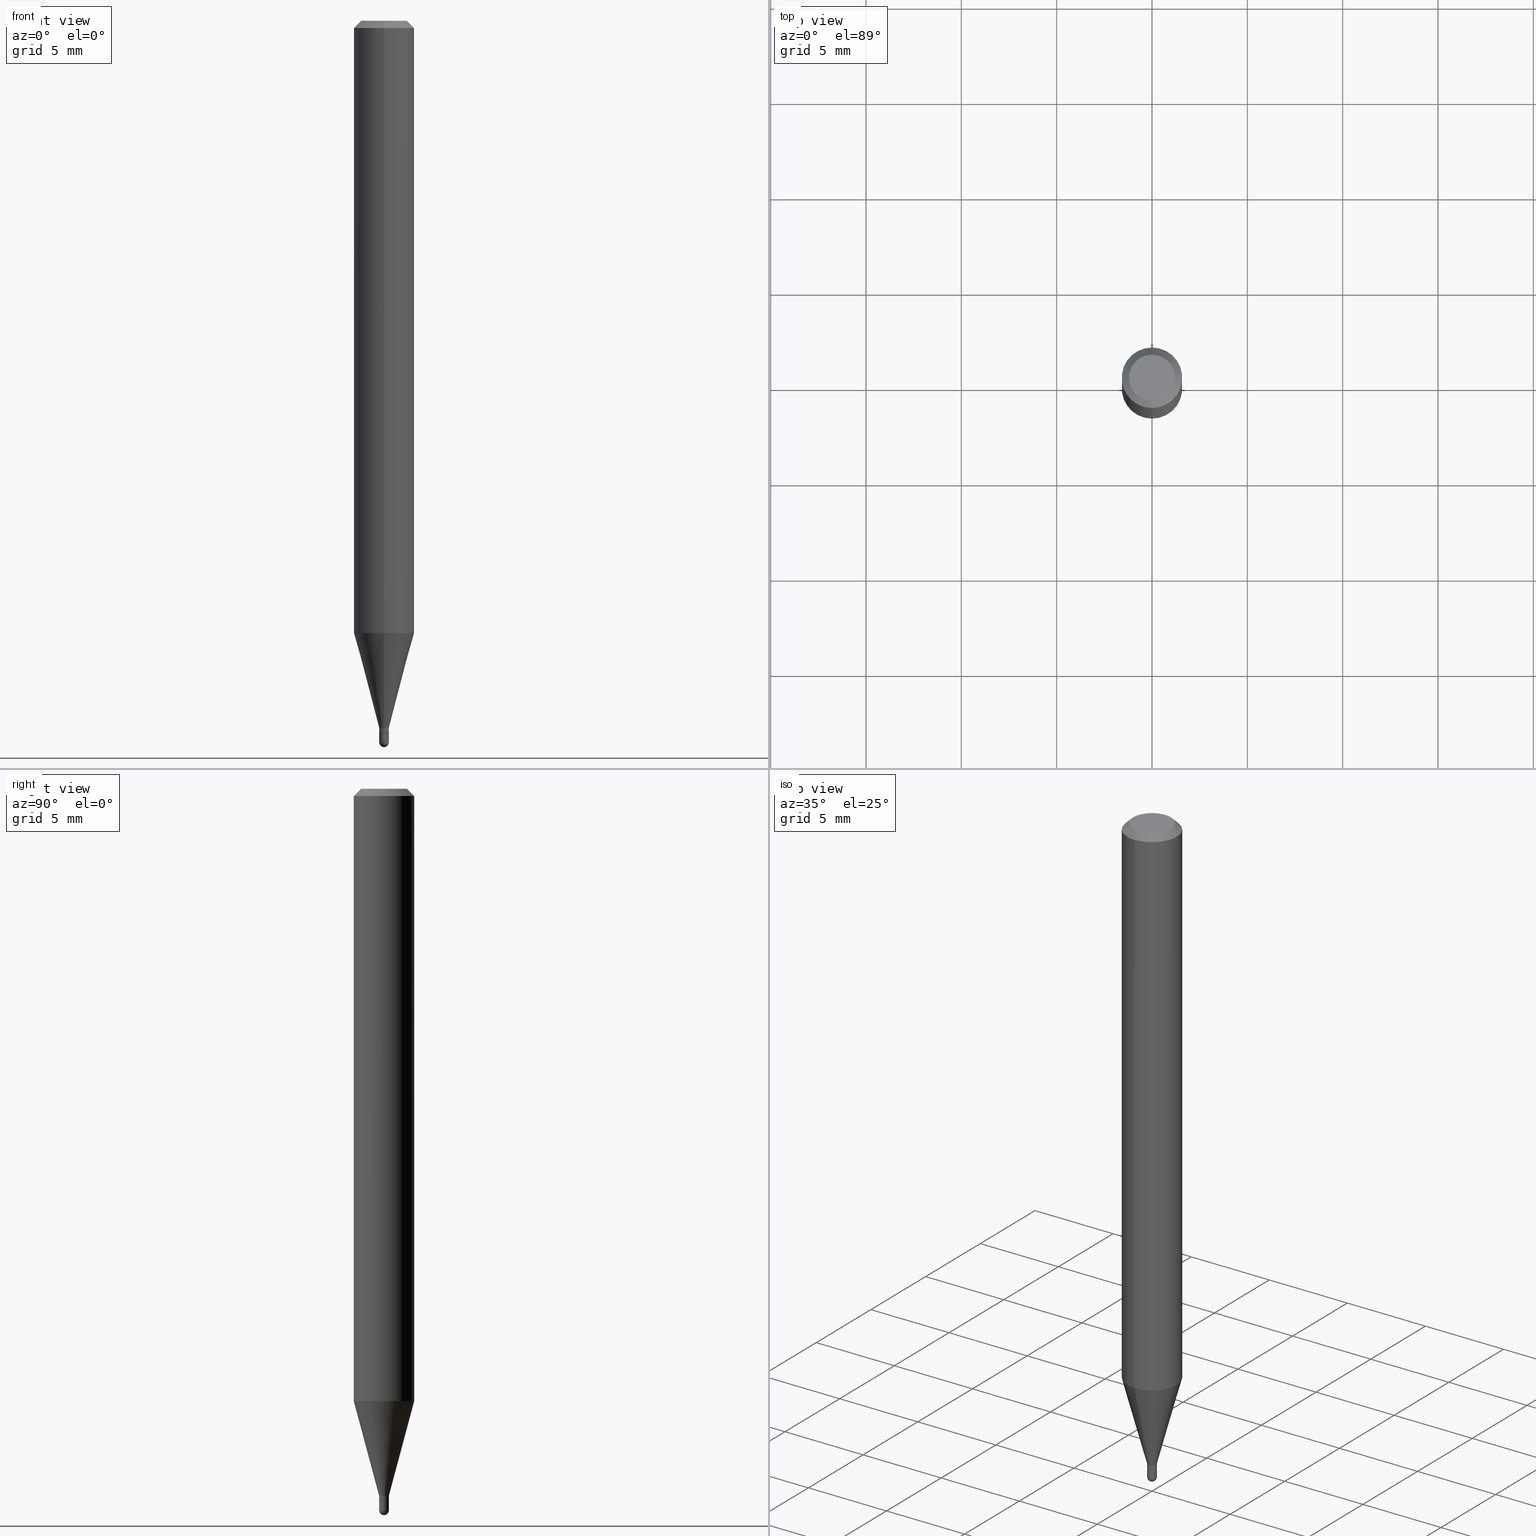
[diagram: canonical four-view strip — front | top / right | iso, engineering-drawing reading convention]
A machine part, canonical four-view strip (front | top / right | iso — engineering-drawing reading convention). The complete STEP part file that produces these views, byte-faithful:
ISO-10303-21;
HEADER;
FILE_DESCRIPTION (( 'STEP AP203' ),
    '1' );
FILE_NAME ('03081.STEP',
    '2024-03-08T18:07:33',
    ( '' ),
    ( '' ),
    'SwSTEP 2.0',
    'SolidWorks 2023',
    '' );
FILE_SCHEMA (( 'CONFIG_CONTROL_DESIGN' ));
ENDSEC;

DATA;
#1 = CARTESIAN_POINT ( 'NONE',  ( 3.642893354926674522E-29, -5.203531841675434889E-15, -1.490000000000000213 ) ) ;
#2 = ORIENTED_EDGE ( 'NONE', *, *, #338, .F. ) ;
#3 = SECURITY_CLASSIFICATION ( '', '', #183 ) ;
#4 = DIRECTION ( 'NONE',  ( -2.445483459024879606E-29, 3.491460355142645846E-15, 1.000000000000000000 ) ) ;
#5 = PERSON_AND_ORGANIZATION ( #18, #478 ) ;
#6 = CARTESIAN_POINT ( 'NONE',  ( 3.570405850176324342E-29, -5.097532118508263472E-15, -1.459999999999999964 ) ) ;
#7 = APPROVAL_ROLE ( '' ) ;
#8 = PERSON_AND_ORGANIZATION_ROLE ( 'creator' ) ;
#9 = AXIS2_PLACEMENT_3D ( 'NONE', #87, #403, #80 ) ;
#10 = DIRECTION ( 'NONE',  ( -2.445483459024879606E-29, 3.491460355142645846E-15, 1.000000000000000000 ) ) ;
#11 = DIRECTION ( 'NONE',  ( -1.807323732225329745E-15, -0.2588190451025181305, 0.9659258262890689783 ) ) ;
#12 = DIRECTION ( 'NONE',  ( -2.445483459024879606E-29, 3.491460355142645846E-15, 1.000000000000000000 ) ) ;
#13 = DIRECTION ( 'NONE',  ( -2.445483459024879606E-29, 3.491460355142645846E-15, 1.000000000000000000 ) ) ;
#14 = AXIS2_PLACEMENT_3D ( 'NONE', #326, #286, #398 ) ;
#15 = AXIS2_PLACEMENT_3D ( 'NONE', #221, #13, #104 ) ;
#16 = ADVANCED_FACE ( 'NONE', ( #77 ), #34, .T. ) ;
#17 = SPHERICAL_SURFACE ( 'NONE', #223, 0.009999999999999809389 ) ;
#18 = PERSON ( 'UNSPECIFIED', 'UNSPECIFIED', 'UNSPECIFIED', ('UNSPECIFIED'), ('UNSPECIFIED'), ('UNSPECIFIED') ) ;
#19 = FACE_OUTER_BOUND ( 'NONE', #465, .T. ) ;
#20 = ORIENTED_EDGE ( 'NONE', *, *, #114, .F. ) ;
#21 = DIRECTION ( 'NONE',  ( -6.982962677686265922E-15, -1.000000000000000000, 3.483106191921935554E-15 ) ) ;
#22 = CIRCLE ( 'NONE', #271, 0.009999999999999998473 ) ;
#23 = VERTEX_POINT ( 'NONE', #228 ) ;
#24 = CC_DESIGN_APPROVAL ( #241, ( #502 ) ) ;
#25 = CC_DESIGN_PERSON_AND_ORGANIZATION_ASSIGNMENT ( #294, #45, ( #304 ) ) ;
#26 = FACE_OUTER_BOUND ( 'NONE', #235, .T. ) ;
#27 = CARTESIAN_POINT ( 'NONE',  ( 0.000000000000000000, 0.000000000000000000, 0.000000000000000000 ) ) ;
#28 = ORIENTED_EDGE ( 'NONE', *, *, #160, .T. ) ;
#29 = APPROVAL_ROLE ( '' ) ;
#30 = CARTESIAN_POINT ( 'NONE',  ( 0.000000000000000000, 0.000000000000000000, 0.000000000000000000 ) ) ;
#31 = EDGE_LOOP ( 'NONE', ( #244, #189, #164, #85 ) ) ;
#32 = ORIENTED_EDGE ( 'NONE', *, *, #170, .F. ) ;
#33 = PERSON_AND_ORGANIZATION ( #18, #478 ) ;
#34 = CYLINDRICAL_SURFACE ( 'NONE', #424, 0.06250000000000000000 ) ;
#35 = ORIENTED_EDGE ( 'NONE', *, *, #401, .F. ) ;
#36 = VECTOR ( 'NONE', #127, 39.37007874015748143 ) ;
#37 = CONICAL_SURFACE ( 'NONE', #418, 0.009999999999999923880, 0.2617993877991502405 ) ;
#38 = FACE_OUTER_BOUND ( 'NONE', #471, .T. ) ;
#39 = ORIENTED_EDGE ( 'NONE', *, *, #472, .T. ) ;
#40 = CARTESIAN_POINT ( 'NONE',  ( 7.105427357600945307E-17, 0.009999999999999923880, -3.491460355142618877E-17 ) ) ;
#41 = ORIENTED_EDGE ( 'NONE', *, *, #153, .F. ) ;
#42 = MANIFOLD_SOLID_BREP ( 'Body-Move/Copy2[1]', #205 ) ;
#43 = CYLINDRICAL_SURFACE ( 'NONE', #263, 0.01000000000000000021 ) ;
#44 = EDGE_CURVE ( 'NONE', #280, #279, #186, .T. ) ;
#45 = PERSON_AND_ORGANIZATION_ROLE ( 'design_supplier' ) ;
#46 = VECTOR ( 'NONE', #422, 39.37007874015748854 ) ;
#47 = CARTESIAN_POINT ( 'NONE',  ( 3.668225188537261132E-31, -5.237190532713885175E-17, -0.01499999999999976179 ) ) ;
#48 = VERTEX_POINT ( 'NONE', #151 ) ;
#49 =( NAMED_UNIT ( * ) PLANE_ANGLE_UNIT ( ) SI_UNIT ( $, .RADIAN. ) );
#50 = CARTESIAN_POINT ( 'NONE',  ( 3.091255752973442998E-29, -4.413440978013010846E-15, -1.264067332602634375 ) ) ;
#51 = PERSON_AND_ORGANIZATION ( #18, #478 ) ;
#52 = DIRECTION ( 'NONE',  ( -2.445483459024879326E-29, 3.491460355142645846E-15, 1.000000000000000000 ) ) ;
#53 = APPLICATION_PROTOCOL_DEFINITION ( 'international standard', 'config_control_design', 1994, #376 ) ;
#54 = CONICAL_SURFACE ( 'NONE', #379, 0.06250000000000000000, 0.7853981633974483900 ) ;
#55 = FACE_OUTER_BOUND ( 'NONE', #236, .T. ) ;
#56 = APPROVAL_ROLE ( '' ) ;
#57 = DIRECTION ( 'NONE',  ( -2.445483459024879606E-29, 3.491460355142645846E-15, 1.000000000000000000 ) ) ;
#58 = EDGE_CURVE ( 'NONE', #501, #182, #490, .T. ) ;
#59 = FACE_OUTER_BOUND ( 'NONE', #438, .T. ) ;
#60 = CC_DESIGN_PERSON_AND_ORGANIZATION_ASSIGNMENT ( #33, #109, ( #3 ) ) ;
#61 = AXIS2_PLACEMENT_3D ( 'NONE', #342, #65, #110 ) ;
#62 = CARTESIAN_POINT ( 'NONE',  ( -5.856630768411542806E-45, 8.361616214231560244E-31, 2.394876459621132021E-16 ) ) ;
#63 = ORIENTED_EDGE ( 'NONE', *, *, #44, .F. ) ;
#64 = ADVANCED_FACE ( 'NONE', ( #69 ), #197, .F. ) ;
#65 = DIRECTION ( 'NONE',  ( -2.445483459024879606E-29, 3.491460355142645846E-15, 1.000000000000000000 ) ) ;
#66 = CARTESIAN_POINT ( 'NONE',  ( 0.000000000000000000, 0.000000000000000000, 0.000000000000000000 ) ) ;
#67 = DIRECTION ( 'NONE',  ( -2.445483459024879606E-29, 3.491460355142645846E-15, 1.000000000000000000 ) ) ;
#68 = CIRCLE ( 'NONE', #457, 0.009999999999999923880 ) ;
#69 = FACE_OUTER_BOUND ( 'NONE', #322, .T. ) ;
#70 = ORIENTED_EDGE ( 'NONE', *, *, #395, .F. ) ;
#71 = AXIS2_PLACEMENT_3D ( 'NONE', #297, #10, #370 ) ;
#72 = DIRECTION ( 'NONE',  ( -6.982962677686266711E-15, -1.000000000000000000, 3.491460355142647030E-15 ) ) ;
#73 = ORIENTED_EDGE ( 'NONE', *, *, #491, .F. ) ;
#74 = VERTEX_POINT ( 'NONE', #316 ) ;
#75 = PERSON_AND_ORGANIZATION ( #18, #478 ) ;
#76 = CARTESIAN_POINT ( 'NONE',  ( 7.105427357604516135E-17, 0.009999999999994827263, -1.459999999999999964 ) ) ;
#77 = FACE_OUTER_BOUND ( 'NONE', #201, .T. ) ;
#78 = ORIENTED_EDGE ( 'NONE', *, *, #491, .T. ) ;
#79 = APPROVAL_STATUS ( 'not_yet_approved' ) ;
#80 = DIRECTION ( 'NONE',  ( 6.982962677686265922E-15, 1.000000000000000000, -3.483106191921935554E-15 ) ) ;
#81 = ORIENTED_EDGE ( 'NONE', *, *, #275, .F. ) ;
#82 = DATE_TIME_ROLE ( 'classification_date' ) ;
#83 = APPROVAL_PERSON_ORGANIZATION ( #86, #101, #56 ) ;
#84 = PRODUCT_DEFINITION_SHAPE ( 'NONE', 'NONE',  #502 ) ;
#85 = ORIENTED_EDGE ( 'NONE', *, *, #191, .T. ) ;
#86 = PERSON_AND_ORGANIZATION ( #18, #478 ) ;
#87 = CARTESIAN_POINT ( 'NONE',  ( 3.668225188537261132E-31, -5.237190532713885175E-17, -0.01499999999999976179 ) ) ;
#88 = ORIENTED_EDGE ( 'NONE', *, *, #215, .F. ) ;
#89 = VECTOR ( 'NONE', #301, 39.37007874015748143 ) ;
#90 = CARTESIAN_POINT ( 'NONE',  ( 0.000000000000000000, 0.000000000000000000, 0.000000000000000000 ) ) ;
#91 = AXIS2_PLACEMENT_3D ( 'NONE', #377, #361, #21 ) ;
#92 = FACE_OUTER_BOUND ( 'NONE', #31, .T. ) ;
#93 = FACE_OUTER_BOUND ( 'NONE', #388, .T. ) ;
#94 = EDGE_CURVE ( 'NONE', #270, #317, #22, .T. ) ;
#95 = CARTESIAN_POINT ( 'NONE',  ( 0.01000000000000000021, -5.202307194876286528E-15, -1.470000000000000195 ) ) ;
#96 = MECHANICAL_CONTEXT ( 'NONE', #506, 'mechanical' ) ;
#97 = CC_DESIGN_APPROVAL ( #101, ( #304 ) ) ;
#98 = DIRECTION ( 'NONE',  ( -2.445483459024879606E-29, 3.491460355142645846E-15, 1.000000000000000000 ) ) ;
#99 = ADVANCED_FACE ( 'NONE', ( #381 ), #495, .T. ) ;
#100 = DIRECTION ( 'NONE',  ( 2.445483459024879606E-29, -3.491460355142645846E-15, -1.000000000000000000 ) ) ;
#101 = APPROVAL ( #207, 'UNSPECIFIED' ) ;
#102 = DIRECTION ( 'NONE',  ( -6.982962677686265922E-15, -1.000000000000000000, 0.000000000000000000 ) ) ;
#103 = AXIS2_PLACEMENT_3D ( 'NONE', #233, #194, #155 ) ;
#104 = DIRECTION ( 'NONE',  ( -6.982962677686265922E-15, -1.000000000000000000, 0.000000000000000000 ) ) ;
#105 = LINE ( 'NONE', #107, #46 ) ;
#106 = ORIENTED_EDGE ( 'NONE', *, *, #414, .F. ) ;
#107 = CARTESIAN_POINT ( 'NONE',  ( -6.633814543798357205E-17, -0.009500000000005132811, -1.470000000000000195 ) ) ;
#108 = EDGE_LOOP ( 'NONE', ( #106, #158, #240, #120 ) ) ;
#109 = PERSON_AND_ORGANIZATION_ROLE ( 'classification_officer' ) ;
#110 = DIRECTION ( 'NONE',  ( -6.982962677686265922E-15, -1.000000000000000000, 4.370956789862821150E-15 ) ) ;
#111 = CIRCLE ( 'NONE', #124, 0.06250000000000000000 ) ;
#112 = ORIENTED_EDGE ( 'NONE', *, *, #94, .F. ) ;
#113 = ORIENTED_EDGE ( 'NONE', *, *, #414, .T. ) ;
#114 = EDGE_CURVE ( 'NONE', #460, #156, #249, .T. ) ;
#115 = LINE ( 'NONE', #76, #410 ) ;
#116 = DIRECTION ( 'NONE',  ( 1.000000000000000000, -6.982962677686237523E-15, 0.000000000000000000 ) ) ;
#117 = ORIENTED_EDGE ( 'NONE', *, *, #180, .F. ) ;
#118 = EDGE_CURVE ( 'NONE', #159, #360, #245, .T. ) ;
#119 = VERTEX_POINT ( 'NONE', #169 ) ;
#120 = ORIENTED_EDGE ( 'NONE', *, *, #118, .F. ) ;
#121 = CARTESIAN_POINT ( 'NONE',  ( 0.009999999999999998473, -5.237222008264718177E-15, -1.490000000000000213 ) ) ;
#122 = ORIENTED_EDGE ( 'NONE', *, *, #94, .T. ) ;
#123 = EDGE_CURVE ( 'NONE', #367, #501, #281, .T. ) ;
#124 = AXIS2_PLACEMENT_3D ( 'NONE', #47, #329, #481 ) ;
#125 = COORDINATED_UNIVERSAL_TIME_OFFSET ( 5, 0, .BEHIND. ) ;
#126 = VECTOR ( 'NONE', #67, 39.37007874015748143 ) ;
#127 = DIRECTION ( 'NONE',  ( -2.445483459024879606E-29, 3.491460355142645846E-15, 1.000000000000000000 ) ) ;
#128 = CALENDAR_DATE ( 2024, 8, 3 ) ;
#129 = DIRECTION ( 'NONE',  ( -6.982962677686265922E-15, -1.000000000000000000, 3.491460355142645846E-15 ) ) ;
#130 = ADVANCED_FACE ( 'NONE', ( #38 ), #357, .T. ) ;
#131 = CARTESIAN_POINT ( 'NONE',  ( 3.570405850176324342E-29, -5.097532118508263472E-15, -1.459999999999999964 ) ) ;
#132 = AXIS2_PLACEMENT_3D ( 'NONE', #193, #302, #459 ) ;
#133 = DIRECTION ( 'NONE',  ( -6.982962677686265922E-15, -1.000000000000000000, 0.000000000000000000 ) ) ;
#134 = CARTESIAN_POINT ( 'NONE',  ( 3.594860684766573634E-29, -5.132446722059690388E-15, -1.470000000000000195 ) ) ;
#135 = PERSON_AND_ORGANIZATION_ROLE ( 'design_owner' ) ;
#136 = CARTESIAN_POINT ( 'NONE',  ( -0.01000000000000000021, -5.096338107911845586E-15, -1.470000000000000195 ) ) ;
#137 = AXIS2_PLACEMENT_3D ( 'NONE', #6, #200, #321 ) ;
#138 = AXIS2_PLACEMENT_3D ( 'NONE', #308, #456, #348 ) ;
#139 = CARTESIAN_POINT ( 'NONE',  ( 3.594860684766573634E-29, -5.132446722059690388E-15, -1.470000000000000195 ) ) ;
#140 = DIRECTION ( 'NONE',  ( -6.982962677686265922E-15, -1.000000000000000000, 0.000000000000000000 ) ) ;
#141 = EDGE_CURVE ( 'NONE', #279, #280, #313, .T. ) ;
#142 = DIRECTION ( 'NONE',  ( -2.445483459024879606E-29, 3.491460355142645846E-15, 1.000000000000000000 ) ) ;
#143 = ADVANCED_BREP_SHAPE_REPRESENTATION ( '03081', ( #42, #394, #496 ), #365 ) ;
#144 = AXIS2_PLACEMENT_3D ( 'NONE', #378, #347, #185 ) ;
#145 = PLANE ( 'NONE',  #355 ) ;
#146 = AXIS2_PLACEMENT_3D ( 'NONE', #256, #98, #224 ) ;
#147 = EDGE_LOOP ( 'NONE', ( #88, #81 ) ) ;
#148 = LINE ( 'NONE', #380, #213 ) ;
#149 = DIRECTION ( 'NONE',  ( -2.445468806185136597E-29, 3.491481338843145583E-15, 1.000000000000000000 ) ) ;
#150 = DIRECTION ( 'NONE',  ( -6.982962677686266711E-15, -1.000000000000000000, 3.491460355142647030E-15 ) ) ;
#151 = CARTESIAN_POINT ( 'NONE',  ( -3.773273898774340269E-16, -0.04749999999999999362, 4.053320128313888837E-16 ) ) ;
#152 = ORIENTED_EDGE ( 'NONE', *, *, #384, .T. ) ;
#153 = EDGE_CURVE ( 'NONE', #198, #23, #288, .T. ) ;
#154 = CARTESIAN_POINT ( 'NONE',  ( -6.982962677686212723E-17, -0.009999999999999923880, 3.491460355142618877E-17 ) ) ;
#155 = DIRECTION ( 'NONE',  ( -1.000000000000000000, 6.982962677686265922E-15, -4.876176775795935793E-29 ) ) ;
#156 = VERTEX_POINT ( 'NONE', #439 ) ;
#157 = CIRCLE ( 'NONE', #333, 0.009999999999999809389 ) ;
#158 = ORIENTED_EDGE ( 'NONE', *, *, #229, .T. ) ;
#159 = VERTEX_POINT ( 'NONE', #161 ) ;
#160 = EDGE_CURVE ( 'NONE', #198, #74, #436, .T. ) ;
#161 = CARTESIAN_POINT ( 'NONE',  ( 3.840629472727447874E-16, 0.04749999999999999362, 7.364327909283752044E-17 ) ) ;
#162 = VERTEX_POINT ( 'NONE', #208 ) ;
#163 = DIRECTION ( 'NONE',  ( 1.000000000000000000, -6.982962677686235945E-15, 0.000000000000000000 ) ) ;
#164 = ORIENTED_EDGE ( 'NONE', *, *, #118, .T. ) ;
#165 = LOCAL_TIME ( 13, 7, 33.00000000000000000, #125 ) ;
#166 = CALENDAR_DATE ( 2024, 8, 3 ) ;
#167 = DIRECTION ( 'NONE',  ( -6.982962677686265922E-15, -1.000000000000000000, 4.370956789862821150E-15 ) ) ;
#168 = COORDINATED_UNIVERSAL_TIME_OFFSET ( 5, 0, .BEHIND. ) ;
#169 = CARTESIAN_POINT ( 'NONE',  ( -6.982962677682641895E-17, -0.01000000000000508815, -1.469500000000000250 ) ) ;
#170 = EDGE_CURVE ( 'NONE', #460, #119, #68, .T. ) ;
#171 = VECTOR ( 'NONE', #4, 39.37007874015748143 ) ;
#172 = AXIS2_PLACEMENT_3D ( 'NONE', #212, #448, #299 ) ;
#173 = FACE_OUTER_BOUND ( 'NONE', #441, .T. ) ;
#174 = ADVANCED_FACE ( 'NONE', ( #92 ), #237, .T. ) ;
#175 = DIRECTION ( 'NONE',  ( -2.445468806185136597E-29, 3.491481338843145583E-15, 1.000000000000000000 ) ) ;
#176 = PLANE ( 'NONE',  #324 ) ;
#177 = VECTOR ( 'NONE', #332, 39.37007874015748143 ) ;
#178 = CONICAL_SURFACE ( 'NONE', #15, 0.009999999999999923880, 0.2617993877991502405 ) ;
#179 = CARTESIAN_POINT ( 'NONE',  ( 3.593637943037061422E-29, -5.130700991882118924E-15, -1.469500000000000250 ) ) ;
#180 = EDGE_CURVE ( 'NONE', #274, #156, #303, .T. ) ;
#181 = DIRECTION ( 'NONE',  ( -6.982962677686265922E-15, -1.000000000000000000, 0.000000000000000000 ) ) ;
#182 = VERTEX_POINT ( 'NONE', #121 ) ;
#183 = SECURITY_CLASSIFICATION_LEVEL ( 'unclassified' ) ;
#184 = DIRECTION ( 'NONE',  ( 1.000000000000000000, -7.105427357601001070E-15, 4.926315508542082329E-29 ) ) ;
#185 = DIRECTION ( 'NONE',  ( 1.000000000000000000, -6.982962677686235945E-15, 0.000000000000000000 ) ) ;
#186 = CIRCLE ( 'NONE', #144, 0.01000000000000000021 ) ;
#187 = CARTESIAN_POINT ( 'NONE',  ( 3.570405850176324342E-29, -5.097532118508263472E-15, -1.459999999999999964 ) ) ;
#188 = VECTOR ( 'NONE', #426, 39.37007874015748143 ) ;
#189 = ORIENTED_EDGE ( 'NONE', *, *, #384, .F. ) ;
#190 = DIRECTION ( 'NONE',  ( -2.445483459024879606E-29, 3.491460355142645846E-15, 1.000000000000000000 ) ) ;
#191 = EDGE_CURVE ( 'NONE', #360, #23, #111, .T. ) ;
#192 = DIRECTION ( 'NONE',  ( -2.445483459024879606E-29, 3.491460355142645846E-15, 1.000000000000000000 ) ) ;
#193 = CARTESIAN_POINT ( 'NONE',  ( 0.000000000000000000, 0.000000000000000000, 0.000000000000000000 ) ) ;
#194 = DIRECTION ( 'NONE',  ( 2.438088387897960049E-29, -3.491481338843145188E-15, -1.000000000000000000 ) ) ;
#195 = ORIENTED_EDGE ( 'NONE', *, *, #141, .T. ) ;
#196 = AXIS2_PLACEMENT_3D ( 'NONE', #295, #175, #336 ) ;
#197 = PLANE ( 'NONE',  #103 ) ;
#198 = VERTEX_POINT ( 'NONE', #283 ) ;
#199 = EDGE_CURVE ( 'NONE', #156, #274, #409, .T. ) ;
#200 = DIRECTION ( 'NONE',  ( -2.445483459024879606E-29, 3.491460355142645846E-15, 1.000000000000000000 ) ) ;
#201 = EDGE_LOOP ( 'NONE', ( #28, #382, #70, #41 ) ) ;
#202 = ORIENTED_EDGE ( 'NONE', *, *, #153, .T. ) ;
#203 = CARTESIAN_POINT ( 'NONE',  ( 3.642893354926674522E-29, -5.203531841675434889E-15, -1.490000000000000213 ) ) ;
#204 = CARTESIAN_POINT ( 'NONE',  ( 3.594839145092150820E-29, -5.132477568099424807E-15, -1.470000000000000195 ) ) ;
#205 = CLOSED_SHELL ( 'NONE', ( #312, #306, #64, #130, #373 ) ) ;
#206 = LOCAL_TIME ( 13, 7, 33.00000000000000000, #507 ) ;
#207 = APPROVAL_STATUS ( 'not_yet_approved' ) ;
#208 = CARTESIAN_POINT ( 'NONE',  ( -6.633814543798357205E-17, -0.009500000000005132811, -1.470000000000000195 ) ) ;
#209 = DIRECTION ( 'NONE',  ( 1.000000000000000000, 0.000000000000000000, 0.000000000000000000 ) ) ;
#210 = CC_DESIGN_DATE_AND_TIME_ASSIGNMENT ( #247, #480, ( #502 ) ) ;
#211 = DATE_AND_TIME ( #128, #425 ) ;
#212 = CARTESIAN_POINT ( 'NONE',  ( 0.000000000000000000, 0.000000000000000000, 0.000000000000000000 ) ) ;
#213 = VECTOR ( 'NONE', #469, 39.37007874015748854 ) ;
#214 = PERSON_AND_ORGANIZATION_ROLE ( 'creator' ) ;
#215 = EDGE_CURVE ( 'NONE', #162, #428, #467, .T. ) ;
#216 = CC_DESIGN_SECURITY_CLASSIFICATION ( #3, ( #304 ) ) ;
#217 = CARTESIAN_POINT ( 'NONE',  ( 3.642893354926674522E-29, -5.203531841675434889E-15, -1.490000000000000213 ) ) ;
#218 = APPROVAL_DATE_TIME ( #446, #241 ) ;
#219 = CC_DESIGN_PERSON_AND_ORGANIZATION_ASSIGNMENT ( #411, #214, ( #502 ) ) ;
#220 = CARTESIAN_POINT ( 'NONE',  ( 3.668225188537261132E-31, -5.237190532713885175E-17, -0.01499999999999976179 ) ) ;
#221 = CARTESIAN_POINT ( 'NONE',  ( 3.570405850176324342E-29, -5.097532118508263472E-15, -1.459999999999999964 ) ) ;
#222 = CONICAL_SURFACE ( 'NONE', #508, 0.009499999999999999764, 0.7853981633974728149 ) ;
#223 = AXIS2_PLACEMENT_3D ( 'NONE', #217, #293, #339 ) ;
#224 = DIRECTION ( 'NONE',  ( -6.982962677686265922E-15, -1.000000000000000000, 0.000000000000000000 ) ) ;
#225 = DIRECTION ( 'NONE',  ( 2.445483459024879326E-29, -3.491460355142645846E-15, -1.000000000000000000 ) ) ;
#226 = DIRECTION ( 'NONE',  ( -6.982962677686265922E-15, -1.000000000000000000, 3.491460355142645846E-15 ) ) ;
#227 = DIRECTION ( 'NONE',  ( -2.445483459024879606E-29, 3.491460355142645846E-15, 1.000000000000000000 ) ) ;
#228 = CARTESIAN_POINT ( 'NONE',  ( -4.364351673553912750E-16, -0.06250000000000005551, -0.01499999999999954321 ) ) ;
#229 = EDGE_CURVE ( 'NONE', #48, #23, #447, .T. ) ;
#230 = AXIS2_PLACEMENT_3D ( 'NONE', #343, #149, #309 ) ;
#231 = DIRECTION ( 'NONE',  ( 6.982962677686265922E-15, 1.000000000000000000, -3.491460355142645846E-15 ) ) ;
#232 = VECTOR ( 'NONE', #190, 39.37007874015748143 ) ;
#233 = CARTESIAN_POINT ( 'NONE',  ( 6.982962677689861205E-17, 0.009999999999994867161, -1.470000000000000195 ) ) ;
#234 = LINE ( 'NONE', #154, #126 ) ;
#235 = EDGE_LOOP ( 'NONE', ( #284, #433, #375, #73 ) ) ;
#236 = EDGE_LOOP ( 'NONE', ( #266, #431, #505, #473 ) ) ;
#237 = CONICAL_SURFACE ( 'NONE', #9, 0.06250000000000000000, 0.7853981633974483900 ) ;
#238 = AXIS2_PLACEMENT_3D ( 'NONE', #346, #142, #72 ) ;
#239 = CARTESIAN_POINT ( 'NONE',  ( 3.593637943037061422E-29, -5.130700991882118924E-15, -1.469500000000000250 ) ) ;
#240 = ORIENTED_EDGE ( 'NONE', *, *, #395, .T. ) ;
#241 = APPROVAL ( #334, 'UNSPECIFIED' ) ;
#242 = CALENDAR_DATE ( 2024, 8, 3 ) ;
#243 = DIRECTION ( 'NONE',  ( -2.445468806185136597E-29, 3.491481338843145583E-15, 1.000000000000000000 ) ) ;
#244 = ORIENTED_EDGE ( 'NONE', *, *, #229, .F. ) ;
#245 = LINE ( 'NONE', #405, #177 ) ;
#246 = DESIGN_CONTEXT ( 'detailed design', #376, 'design' ) ;
#247 = DATE_AND_TIME ( #166, #325 ) ;
#248 = EDGE_CURVE ( 'NONE', #182, #279, #260, .T. ) ;
#249 = LINE ( 'NONE', #40, #36 ) ;
#250 = VECTOR ( 'NONE', #494, 39.37007874015748143 ) ;
#251 = ORIENTED_EDGE ( 'NONE', *, *, #248, .F. ) ;
#252 = AXIS2_PLACEMENT_3D ( 'NONE', #179, #372, #369 ) ;
#253 = PRODUCT ( '03081', '03081', '', ( #96 ) ) ;
#254 = CYLINDRICAL_SURFACE ( 'NONE', #172, 0.01000000000000000021 ) ;
#255 = ADVANCED_FACE ( 'NONE', ( #487 ), #176, .F. ) ;
#256 = CARTESIAN_POINT ( 'NONE',  ( 3.594860684766573634E-29, -5.132446722059690388E-15, -1.470000000000000195 ) ) ;
#257 = AXIS2_PLACEMENT_3D ( 'NONE', #261, #12, #181 ) ;
#258 = LOCAL_TIME ( 13, 7, 33.00000000000000000, #259 ) ;
#259 = COORDINATED_UNIVERSAL_TIME_OFFSET ( 5, 0, .BEHIND. ) ;
#260 = LINE ( 'NONE', #340, #89 ) ;
#261 = CARTESIAN_POINT ( 'NONE',  ( 3.594860684766573634E-29, -5.132446722059690388E-15, -1.470000000000000195 ) ) ;
#262 = CARTESIAN_POINT ( 'NONE',  ( 7.105427357604575300E-17, 0.009999999999994700628, -1.490000000000000213 ) ) ;
#263 = AXIS2_PLACEMENT_3D ( 'NONE', #30, #268, #265 ) ;
#264 = DIRECTION ( 'NONE',  ( -6.982962677686265922E-15, -1.000000000000000000, 0.000000000000000000 ) ) ;
#265 = DIRECTION ( 'NONE',  ( 1.000000000000000000, -6.982962677686265922E-15, 4.876176775795935793E-29 ) ) ;
#266 = ORIENTED_EDGE ( 'NONE', *, *, #215, .T. ) ;
#267 = ADVANCED_FACE ( 'NONE', ( #173 ), #222, .T. ) ;
#268 = DIRECTION ( 'NONE',  ( -2.445468806185136597E-29, 3.491481338843145583E-15, 1.000000000000000000 ) ) ;
#269 = ORIENTED_EDGE ( 'NONE', *, *, #191, .F. ) ;
#270 = VERTEX_POINT ( 'NONE', #262 ) ;
#271 = AXIS2_PLACEMENT_3D ( 'NONE', #318, #470, #116 ) ;
#272 = LINE ( 'NONE', #276, #188 ) ;
#273 = CC_DESIGN_APPROVAL ( #511, ( #3 ) ) ;
#274 = VERTEX_POINT ( 'NONE', #415 ) ;
#275 = EDGE_CURVE ( 'NONE', #428, #162, #443, .T. ) ;
#276 = CARTESIAN_POINT ( 'NONE',  ( -0.01000000000000000021, 7.105427357601002007E-17, -4.918935090254906272E-31 ) ) ;
#277 = ORIENTED_EDGE ( 'NONE', *, *, #454, .T. ) ;
#278 = ORIENTED_EDGE ( 'NONE', *, *, #275, .T. ) ;
#279 = VERTEX_POINT ( 'NONE', #95 ) ;
#280 = VERTEX_POINT ( 'NONE', #136 ) ;
#281 = CIRCLE ( 'NONE', #344, 0.009999999999999809389 ) ;
#282 = VECTOR ( 'NONE', #11, 39.37007874015748143 ) ;
#283 = CARTESIAN_POINT ( 'NONE',  ( -4.364351673553607559E-16, -0.06250000000000441314, -1.264067332602633931 ) ) ;
#284 = ORIENTED_EDGE ( 'NONE', *, *, #472, .F. ) ;
#285 = UNCERTAINTY_MEASURE_WITH_UNIT (LENGTH_MEASURE( 1.000000000000000082E-05 ), #291, 'distance_accuracy_value', 'NONE');
#286 = DIRECTION ( 'NONE',  ( 1.000000000000000000, -6.982962677686265133E-15, 4.883557194083111780E-29 ) ) ;
#287 = APPROVAL_DATE_TIME ( #211, #101 ) ;
#288 = LINE ( 'NONE', #484, #171 ) ;
#289 = ORIENTED_EDGE ( 'NONE', *, *, #141, .F. ) ;
#290 = AXIS2_PLACEMENT_3D ( 'NONE', #134, #57, #416 ) ;
#291 =( CONVERSION_BASED_UNIT ( 'INCH', #399 ) LENGTH_UNIT ( ) NAMED_UNIT ( #387 ) );
#292 = ADVANCED_FACE ( 'NONE', ( #55 ), #298, .T. ) ;
#293 = DIRECTION ( 'NONE',  ( 1.000000000000000000, -6.982962677686265133E-15, 4.883557194083111780E-29 ) ) ;
#294 = PERSON_AND_ORGANIZATION ( #18, #478 ) ;
#295 = CARTESIAN_POINT ( 'NONE',  ( 3.643748521215853910E-29, -5.202307194876288105E-15, -1.490000000000000213 ) ) ;
#296 = DIRECTION ( 'NONE',  ( 0.000000000000000000, 0.000000000000000000, 1.000000000000000000 ) ) ;
#297 = CARTESIAN_POINT ( 'NONE',  ( 0.000000000000000000, 0.000000000000000000, 0.000000000000000000 ) ) ;
#298 = CONICAL_SURFACE ( 'NONE', #146, 0.009499999999999999764, 0.7853981633974728149 ) ;
#299 = DIRECTION ( 'NONE',  ( 1.000000000000000000, -6.982962677686265922E-15, 4.876176775795935793E-29 ) ) ;
#300 = EDGE_CURVE ( 'NONE', #119, #460, #354, .T. ) ;
#301 = DIRECTION ( 'NONE',  ( -2.445468806185136877E-29, 3.491481338843145188E-15, 1.000000000000000000 ) ) ;
#302 = DIRECTION ( 'NONE',  ( -2.445483459024879606E-29, 3.491460355142645846E-15, 1.000000000000000000 ) ) ;
#303 = CIRCLE ( 'NONE', #137, 0.009999999999999923880 ) ;
#304 = PRODUCT_DEFINITION_FORMATION_WITH_SPECIFIED_SOURCE ( 'ANY', '', #253, .NOT_KNOWN. ) ;
#305 = DIRECTION ( 'NONE',  ( -2.445483459024879606E-29, 3.491460355142645846E-15, 1.000000000000000000 ) ) ;
#306 = ADVANCED_FACE ( 'NONE', ( #59 ), #17, .T. ) ;
#307 = ORIENTED_EDGE ( 'NONE', *, *, #58, .T. ) ;
#308 = CARTESIAN_POINT ( 'NONE',  ( 3.643748521215853910E-29, -5.202307194876288105E-15, -1.490000000000000213 ) ) ;
#309 = DIRECTION ( 'NONE',  ( 1.000000000000000000, -6.982962677686237523E-15, 0.000000000000000000 ) ) ;
#310 = DIRECTION ( 'NONE',  ( 1.839019923739599921E-15, 0.2588190451025249028, 0.9659258262890670910 ) ) ;
#311 = ORIENTED_EDGE ( 'NONE', *, *, #160, .F. ) ;
#312 = ADVANCED_FACE ( 'NONE', ( #93 ), #254, .T. ) ;
#313 = CIRCLE ( 'NONE', #371, 0.01000000000000000021 ) ;
#314 = FACE_OUTER_BOUND ( 'NONE', #427, .T. ) ;
#315 = CIRCLE ( 'NONE', #238, 0.04749999999999999362 ) ;
#316 = CARTESIAN_POINT ( 'NONE',  ( 4.440892098500933817E-16, 0.06249999999999558686, -1.264067332602634597 ) ) ;
#317 = VERTEX_POINT ( 'NONE', #366 ) ;
#318 = CARTESIAN_POINT ( 'NONE',  ( 3.643748521215853910E-29, -5.202307194876288105E-15, -1.490000000000000213 ) ) ;
#319 = ORIENTED_EDGE ( 'NONE', *, *, #493, .T. ) ;
#320 = APPROVAL_DATE_TIME ( #475, #511 ) ;
#321 = DIRECTION ( 'NONE',  ( -6.982962677686265922E-15, -1.000000000000000000, 0.000000000000000000 ) ) ;
#322 = EDGE_LOOP ( 'NONE', ( #195, #352 ) ) ;
#323 = DATE_AND_TIME ( #432, #165 ) ;
#324 = AXIS2_PLACEMENT_3D ( 'NONE', #364, #52, #337 ) ;
#325 = LOCAL_TIME ( 13, 7, 33.00000000000000000, #168 ) ;
#326 = CARTESIAN_POINT ( 'NONE',  ( 3.642893354926674522E-29, -5.203531841675434889E-15, -1.490000000000000213 ) ) ;
#327 = ADVANCED_FACE ( 'NONE', ( #408 ), #407, .T. ) ;
#328 = DIRECTION ( 'NONE',  ( -6.982962677686265922E-15, -1.000000000000000000, 0.000000000000000000 ) ) ;
#329 = DIRECTION ( 'NONE',  ( -2.445483459024879606E-29, 3.491460355142645846E-15, 1.000000000000000000 ) ) ;
#330 = CALENDAR_DATE ( 2024, 8, 3 ) ;
#331 = EDGE_CURVE ( 'NONE', #274, #198, #335, .T. ) ;
#332 = DIRECTION ( 'NONE',  ( 4.937700262164548042E-15, 0.7071067811865451302, -0.7071067811865499042 ) ) ;
#333 = AXIS2_PLACEMENT_3D ( 'NONE', #203, #184, #497 ) ;
#334 = APPROVAL_STATUS ( 'not_yet_approved' ) ;
#335 = LINE ( 'NONE', #486, #282 ) ;
#336 = DIRECTION ( 'NONE',  ( 1.000000000000000000, -6.982962677686237523E-15, 0.000000000000000000 ) ) ;
#337 = DIRECTION ( 'NONE',  ( -6.982962677686265922E-15, -1.000000000000000000, 3.491460355142645846E-15 ) ) ;
#338 = EDGE_CURVE ( 'NONE', #182, #270, #402, .T. ) ;
#339 = DIRECTION ( 'NONE',  ( -6.982962677686265133E-15, -1.000000000000000000, 0.000000000000000000 ) ) ;
#340 = CARTESIAN_POINT ( 'NONE',  ( 0.01000000000000000021, -6.982962677686265724E-17, 4.876176775795935968E-31 ) ) ;
#341 = ADVANCED_FACE ( 'NONE', ( #453 ), #54, .T. ) ;
#342 = CARTESIAN_POINT ( 'NONE',  ( 3.091255752973442998E-29, -4.413440978013010846E-15, -1.264067332602634375 ) ) ;
#343 = CARTESIAN_POINT ( 'NONE',  ( 3.643748521215853910E-29, -5.202307194876288105E-15, -1.490000000000000213 ) ) ;
#344 = AXIS2_PLACEMENT_3D ( 'NONE', #1, #392, #328 ) ;
#345 = CC_DESIGN_PERSON_AND_ORGANIZATION_ASSIGNMENT ( #51, #135, ( #253 ) ) ;
#346 = CARTESIAN_POINT ( 'NONE',  ( -5.856630768411542806E-45, 8.361616214231560244E-31, 2.394876459621132021E-16 ) ) ;
#347 = DIRECTION ( 'NONE',  ( -2.445468806185136597E-29, 3.491481338843145583E-15, 1.000000000000000000 ) ) ;
#348 = DIRECTION ( 'NONE',  ( 1.000000000000000000, -6.982962677686237523E-15, 0.000000000000000000 ) ) ;
#349 = ORIENTED_EDGE ( 'NONE', *, *, #331, .F. ) ;
#350 = ORIENTED_EDGE ( 'NONE', *, *, #442, .T. ) ;
#351 = FACE_OUTER_BOUND ( 'NONE', #389, .T. ) ;
#352 = ORIENTED_EDGE ( 'NONE', *, *, #44, .T. ) ;
#353 = EDGE_LOOP ( 'NONE', ( #393, #78, #202, #269 ) ) ;
#354 = CIRCLE ( 'NONE', #252, 0.009999999999999923880 ) ;
#355 = AXIS2_PLACEMENT_3D ( 'NONE', #419, #225, #231 ) ;
#356 = ORIENTED_EDGE ( 'NONE', *, *, #368, .T. ) ;
#357 = SPHERICAL_SURFACE ( 'NONE', #14, 0.009999999999999809389 ) ;
#358 = ORIENTED_EDGE ( 'NONE', *, *, #199, .F. ) ;
#359 = ADVANCED_FACE ( 'NONE', ( #413 ), #178, .T. ) ;
#360 = VERTEX_POINT ( 'NONE', #383 ) ;
#361 = DIRECTION ( 'NONE',  ( -2.445483459024879606E-29, 3.491460355142645846E-15, 1.000000000000000000 ) ) ;
#362 = CC_DESIGN_DATE_AND_TIME_ASSIGNMENT ( #323, #82, ( #3 ) ) ;
#363 = PERSON_AND_ORGANIZATION ( #18, #478 ) ;
#364 = CARTESIAN_POINT ( 'NONE',  ( 3.594860684766573634E-29, -5.132446722059690388E-15, -1.470000000000000195 ) ) ;
#365 =( GEOMETRIC_REPRESENTATION_CONTEXT ( 3 ) GLOBAL_UNCERTAINTY_ASSIGNED_CONTEXT ( ( #285 ) ) GLOBAL_UNIT_ASSIGNED_CONTEXT ( ( #291, #49, #449 ) ) REPRESENTATION_CONTEXT ( 'NONE', 'WORKASPACE' ) );
#366 = CARTESIAN_POINT ( 'NONE',  ( -0.009999999999999998473, -5.096338107911845586E-15, -1.490000000000000213 ) ) ;
#367 = VERTEX_POINT ( 'NONE', #461 ) ;
#368 = EDGE_CURVE ( 'NONE', #162, #119, #105, .T. ) ;
#369 = DIRECTION ( 'NONE',  ( -6.982962677686265922E-15, -1.000000000000000000, 0.000000000000000000 ) ) ;
#370 = DIRECTION ( 'NONE',  ( -6.982962677686265922E-15, -1.000000000000000000, 3.491460355142645452E-15 ) ) ;
#371 = AXIS2_PLACEMENT_3D ( 'NONE', #204, #243, #163 ) ;
#372 = DIRECTION ( 'NONE',  ( -2.445483459024879606E-29, 3.491460355142645846E-15, 1.000000000000000000 ) ) ;
#373 = ADVANCED_FACE ( 'NONE', ( #351 ), #43, .T. ) ;
#374 = CARTESIAN_POINT ( 'NONE',  ( 6.927791673664542700E-17, 0.009499999999994866717, -1.470000000000000195 ) ) ;
#375 = ORIENTED_EDGE ( 'NONE', *, *, #331, .T. ) ;
#376 = APPLICATION_CONTEXT ( 'configuration controlled 3d designs of mechanical parts and assemblies' ) ;
#377 = CARTESIAN_POINT ( 'NONE',  ( 3.668225188537261132E-31, -5.237190532713885175E-17, -0.01499999999999976179 ) ) ;
#378 = CARTESIAN_POINT ( 'NONE',  ( 3.594839145092150820E-29, -5.132477568099424807E-15, -1.470000000000000195 ) ) ;
#379 = AXIS2_PLACEMENT_3D ( 'NONE', #220, #100, #450 ) ;
#380 = CARTESIAN_POINT ( 'NONE',  ( 6.750155989724545846E-17, 0.009499999999994866717, -1.470000000000000195 ) ) ;
#381 = FACE_OUTER_BOUND ( 'NONE', #353, .T. ) ;
#382 = ORIENTED_EDGE ( 'NONE', *, *, #485, .T. ) ;
#383 = CARTESIAN_POINT ( 'NONE',  ( 4.440892098500936776E-16, 0.06249999999999993755, -0.01499999999999997863 ) ) ;
#384 = EDGE_CURVE ( 'NONE', #159, #48, #315, .T. ) ;
#385 = ORIENTED_EDGE ( 'NONE', *, *, #454, .F. ) ;
#386 = EDGE_LOOP ( 'NONE', ( #498, #39, #311, #349 ) ) ;
#387 = DIMENSIONAL_EXPONENTS ( 1.000000000000000000, 0.000000000000000000, 0.000000000000000000, 0.000000000000000000, 0.000000000000000000, 0.000000000000000000, 0.000000000000000000 ) ;
#388 = EDGE_LOOP ( 'NONE', ( #122, #319, #289, #251, #500 ) ) ;
#389 = EDGE_LOOP ( 'NONE', ( #512, #350, #307, #510, #63 ) ) ;
#390 = AXIS2_PLACEMENT_3D ( 'NONE', #27, #192, #129 ) ;
#391 = APPROVAL_PERSON_ORGANIZATION ( #5, #241, #7 ) ;
#392 = DIRECTION ( 'NONE',  ( -1.000000000000000000, 6.982962677686265922E-15, -4.883557194083112340E-29 ) ) ;
#393 = ORIENTED_EDGE ( 'NONE', *, *, #485, .F. ) ;
#394 = MANIFOLD_SOLID_BREP ( 'Body-Move/Copy2[2]', #451 ) ;
#395 = EDGE_CURVE ( 'NONE', #23, #360, #468, .T. ) ;
#396 = ORIENTED_EDGE ( 'NONE', *, *, #58, .F. ) ;
#397 =( LENGTH_UNIT ( ) NAMED_UNIT ( * ) SI_UNIT ( $, .METRE. ) );
#398 = DIRECTION ( 'NONE',  ( -6.982962677686265133E-15, -1.000000000000000000, 0.000000000000000000 ) ) ;
#399 = LENGTH_MEASURE_WITH_UNIT ( LENGTH_MEASURE( 0.02539999999999999897 ), #397 );
#400 = AXIS2_PLACEMENT_3D ( 'NONE', #131, #489, #140 ) ;
#401 = EDGE_CURVE ( 'NONE', #119, #274, #234, .T. ) ;
#402 = CIRCLE ( 'NONE', #196, 0.009999999999999998473 ) ;
#403 = DIRECTION ( 'NONE',  ( 2.445483459024879606E-29, -3.491460355142645846E-15, -1.000000000000000000 ) ) ;
#404 = ORIENTED_EDGE ( 'NONE', *, *, #114, .T. ) ;
#405 = CARTESIAN_POINT ( 'NONE',  ( 4.364351673553919652E-16, 0.06249999999999995143, -0.01499999999999997863 ) ) ;
#406 = COORDINATED_UNIVERSAL_TIME_OFFSET ( 5, 0, .BEHIND. ) ;
#407 = CYLINDRICAL_SURFACE ( 'NONE', #71, 0.009999999999999923880 ) ;
#408 = FACE_OUTER_BOUND ( 'NONE', #462, .T. ) ;
#409 = CIRCLE ( 'NONE', #400, 0.009999999999999923880 ) ;
#410 = VECTOR ( 'NONE', #310, 39.37007874015748143 ) ;
#411 = PERSON_AND_ORGANIZATION ( #18, #478 ) ;
#412 = ADVANCED_FACE ( 'NONE', ( #26 ), #37, .T. ) ;
#413 = FACE_OUTER_BOUND ( 'NONE', #386, .T. ) ;
#414 = EDGE_CURVE ( 'NONE', #48, #159, #509, .T. ) ;
#415 = CARTESIAN_POINT ( 'NONE',  ( -6.982962677682643127E-17, -0.01000000000000502050, -1.459999999999999964 ) ) ;
#416 = DIRECTION ( 'NONE',  ( -6.982962677686265922E-15, -1.000000000000000000, 0.000000000000000000 ) ) ;
#417 = ADVANCED_FACE ( 'NONE', ( #314 ), #145, .F. ) ;
#418 = AXIS2_PLACEMENT_3D ( 'NONE', #187, #227, #264 ) ;
#419 = CARTESIAN_POINT ( 'NONE',  ( 3.316907271900976096E-16, 0.04749999999999999362, -4.610054388821907444E-17 ) ) ;
#420 = CARTESIAN_POINT ( 'NONE',  ( 4.440892098500625669E-16, 0.06250000000000000000, -2.182162721964153654E-16 ) ) ;
#421 = ORIENTED_EDGE ( 'NONE', *, *, #442, .F. ) ;
#422 = DIRECTION ( 'NONE',  ( -4.937700262164667949E-15, -0.7071067811865623387, 0.7071067811865325847 ) ) ;
#423 = ORIENTED_EDGE ( 'NONE', *, *, #123, .T. ) ;
#424 = AXIS2_PLACEMENT_3D ( 'NONE', #66, #504, #226 ) ;
#425 = LOCAL_TIME ( 13, 7, 33.00000000000000000, #406 ) ;
#426 = DIRECTION ( 'NONE',  ( -2.445468806185136877E-29, 3.491481338843145188E-15, 1.000000000000000000 ) ) ;
#427 = EDGE_LOOP ( 'NONE', ( #152, #113 ) ) ;
#428 = VERTEX_POINT ( 'NONE', #374 ) ;
#429 = CARTESIAN_POINT ( 'NONE',  ( -6.982962677682555613E-17, -0.01000000000000510723, -1.490000000000000213 ) ) ;
#430 = ORIENTED_EDGE ( 'NONE', *, *, #170, .T. ) ;
#431 = ORIENTED_EDGE ( 'NONE', *, *, #463, .T. ) ;
#432 = CALENDAR_DATE ( 2024, 8, 3 ) ;
#433 = ORIENTED_EDGE ( 'NONE', *, *, #199, .T. ) ;
#434 = ADVANCED_FACE ( 'NONE', ( #19 ), #499, .T. ) ;
#435 = SHAPE_DEFINITION_REPRESENTATION ( #84, #143 ) ;
#436 = CIRCLE ( 'NONE', #477, 0.06250000000000000000 ) ;
#437 = CIRCLE ( 'NONE', #138, 0.009999999999999998473 ) ;
#438 = EDGE_LOOP ( 'NONE', ( #479, #277, #2, #396 ) ) ;
#439 = CARTESIAN_POINT ( 'NONE',  ( 2.575717417130694811E-16, 0.009999999999994827263, -1.459999999999999964 ) ) ;
#440 = DIRECTION ( 'NONE',  ( -2.445483459024879606E-29, 3.491460355142645846E-15, 1.000000000000000000 ) ) ;
#441 = EDGE_LOOP ( 'NONE', ( #476, #278, #356, #32 ) ) ;
#442 = EDGE_CURVE ( 'NONE', #317, #501, #437, .T. ) ;
#443 = CIRCLE ( 'NONE', #290, 0.009499999999999999764 ) ;
#444 = CIRCLE ( 'NONE', #61, 0.06250000000000000000 ) ;
#445 = DIRECTION ( 'NONE',  ( -2.445483459024879606E-29, 3.491460355142645846E-15, 1.000000000000000000 ) ) ;
#446 = DATE_AND_TIME ( #330, #258 ) ;
#447 = LINE ( 'NONE', #492, #250 ) ;
#448 = DIRECTION ( 'NONE',  ( -2.445468806185136597E-29, 3.491481338843145583E-15, 1.000000000000000000 ) ) ;
#449 =( NAMED_UNIT ( * ) SI_UNIT ( $, .STERADIAN. ) SOLID_ANGLE_UNIT ( ) );
#450 = DIRECTION ( 'NONE',  ( 6.982962677686265922E-15, 1.000000000000000000, -3.483106191921935554E-15 ) ) ;
#451 = CLOSED_SHELL ( 'NONE', ( #434, #292, #341, #16, #359, #412, #99, #174, #417, #255, #267, #327 ) ) ;
#452 = APPROVAL_PERSON_ORGANIZATION ( #75, #511, #29 ) ;
#453 = FACE_OUTER_BOUND ( 'NONE', #108, .T. ) ;
#454 = EDGE_CURVE ( 'NONE', #367, #270, #157, .T. ) ;
#455 = DIRECTION ( 'NONE',  ( -2.445483459024879606E-29, 3.491460355142645846E-15, 1.000000000000000000 ) ) ;
#456 = DIRECTION ( 'NONE',  ( -2.445468806185136597E-29, 3.491481338843145583E-15, 1.000000000000000000 ) ) ;
#457 = AXIS2_PLACEMENT_3D ( 'NONE', #239, #440, #133 ) ;
#458 = AXIS2_PLACEMENT_3D ( 'NONE', #62, #305, #150 ) ;
#459 = DIRECTION ( 'NONE',  ( -6.982962677686265922E-15, -1.000000000000000000, 3.491460355142645452E-15 ) ) ;
#460 = VERTEX_POINT ( 'NONE', #503 ) ;
#461 = CARTESIAN_POINT ( 'NONE',  ( 3.666920459843935532E-29, -5.239058978463439141E-15, -1.500000000000000222 ) ) ;
#462 = EDGE_LOOP ( 'NONE', ( #20, #430, #466, #358 ) ) ;
#463 = EDGE_CURVE ( 'NONE', #428, #460, #148, .T. ) ;
#464 = LINE ( 'NONE', #420, #232 ) ;
#465 = EDGE_LOOP ( 'NONE', ( #474, #404, #117, #35 ) ) ;
#466 = ORIENTED_EDGE ( 'NONE', *, *, #401, .T. ) ;
#467 = CIRCLE ( 'NONE', #257, 0.009499999999999999764 ) ;
#468 = CIRCLE ( 'NONE', #91, 0.06250000000000000000 ) ;
#469 = DIRECTION ( 'NONE',  ( 5.024295867788184663E-15, 0.7071067811865672237, 0.7071067811865276997 ) ) ;
#470 = DIRECTION ( 'NONE',  ( -2.445468806185136597E-29, 3.491481338843145583E-15, 1.000000000000000000 ) ) ;
#471 = EDGE_LOOP ( 'NONE', ( #385, #423, #421, #112 ) ) ;
#472 = EDGE_CURVE ( 'NONE', #156, #74, #115, .T. ) ;
#473 = ORIENTED_EDGE ( 'NONE', *, *, #368, .F. ) ;
#474 = ORIENTED_EDGE ( 'NONE', *, *, #300, .T. ) ;
#475 = DATE_AND_TIME ( #242, #206 ) ;
#476 = ORIENTED_EDGE ( 'NONE', *, *, #463, .F. ) ;
#477 = AXIS2_PLACEMENT_3D ( 'NONE', #50, #445, #167 ) ;
#478 = ORGANIZATION ( 'UNSPECIFIED', 'UNSPECIFIED', '' ) ;
#479 = ORIENTED_EDGE ( 'NONE', *, *, #123, .F. ) ;
#480 = DATE_TIME_ROLE ( 'creation_date' ) ;
#481 = DIRECTION ( 'NONE',  ( -6.982962677686265922E-15, -1.000000000000000000, 3.483106191921935554E-15 ) ) ;
#482 = APPLICATION_PROTOCOL_DEFINITION ( 'international standard', 'config_control_design', 1994, #506 ) ;
#483 = PRODUCT_RELATED_PRODUCT_CATEGORY ( 'detail', '', ( #253 ) ) ;
#484 = CARTESIAN_POINT ( 'NONE',  ( -4.364351673553916201E-16, -0.06250000000000000000, 2.182162721964153654E-16 ) ) ;
#485 = EDGE_CURVE ( 'NONE', #74, #360, #464, .T. ) ;
#486 = CARTESIAN_POINT ( 'NONE',  ( -6.982962677682643127E-17, -0.01000000000000502050, -1.459999999999999964 ) ) ;
#487 = FACE_OUTER_BOUND ( 'NONE', #147, .T. ) ;
#488 = CC_DESIGN_PERSON_AND_ORGANIZATION_ASSIGNMENT ( #363, #8, ( #304 ) ) ;
#489 = DIRECTION ( 'NONE',  ( -2.445483459024879606E-29, 3.491460355142645846E-15, 1.000000000000000000 ) ) ;
#490 = CIRCLE ( 'NONE', #230, 0.009999999999999998473 ) ;
#491 = EDGE_CURVE ( 'NONE', #74, #198, #444, .T. ) ;
#492 = CARTESIAN_POINT ( 'NONE',  ( -4.287811248607203282E-16, -0.06250000000000005551, -0.01499999999999954321 ) ) ;
#493 = EDGE_CURVE ( 'NONE', #317, #280, #272, .T. ) ;
#494 = DIRECTION ( 'NONE',  ( -4.851104656540964275E-15, -0.7071067811865500152, -0.7071067811865450192 ) ) ;
#495 = CYLINDRICAL_SURFACE ( 'NONE', #390, 0.06250000000000000000 ) ;
#496 = AXIS2_PLACEMENT_3D ( 'NONE', #90, #296, #209 ) ;
#497 = DIRECTION ( 'NONE',  ( 7.105427357601000281E-15, 1.000000000000000000, 0.000000000000000000 ) ) ;
#498 = ORIENTED_EDGE ( 'NONE', *, *, #180, .T. ) ;
#499 = CYLINDRICAL_SURFACE ( 'NONE', #132, 0.009999999999999923880 ) ;
#500 = ORIENTED_EDGE ( 'NONE', *, *, #338, .T. ) ;
#501 = VERTEX_POINT ( 'NONE', #429 ) ;
#502 = PRODUCT_DEFINITION ( 'UNKNOWN', '', #304, #246 ) ;
#503 = CARTESIAN_POINT ( 'NONE',  ( 7.105427357604517368E-17, 0.009999999999994757874, -1.469500000000000250 ) ) ;
#504 = DIRECTION ( 'NONE',  ( -2.445483459024879606E-29, 3.491460355142645846E-15, 1.000000000000000000 ) ) ;
#505 = ORIENTED_EDGE ( 'NONE', *, *, #300, .F. ) ;
#506 = APPLICATION_CONTEXT ( 'configuration controlled 3d designs of mechanical parts and assemblies' ) ;
#507 = COORDINATED_UNIVERSAL_TIME_OFFSET ( 5, 0, .BEHIND. ) ;
#508 = AXIS2_PLACEMENT_3D ( 'NONE', #139, #455, #102 ) ;
#509 = CIRCLE ( 'NONE', #458, 0.04749999999999999362 ) ;
#510 = ORIENTED_EDGE ( 'NONE', *, *, #248, .T. ) ;
#511 = APPROVAL ( #79, 'UNSPECIFIED' ) ;
#512 = ORIENTED_EDGE ( 'NONE', *, *, #493, .F. ) ;
ENDSEC;
END-ISO-10303-21;
